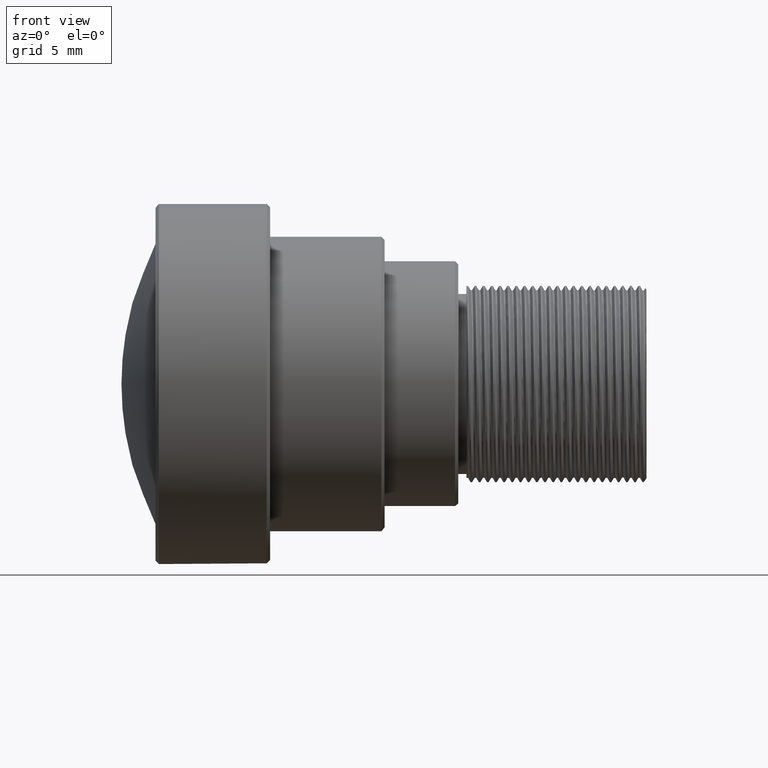
[diagram: clean part render]
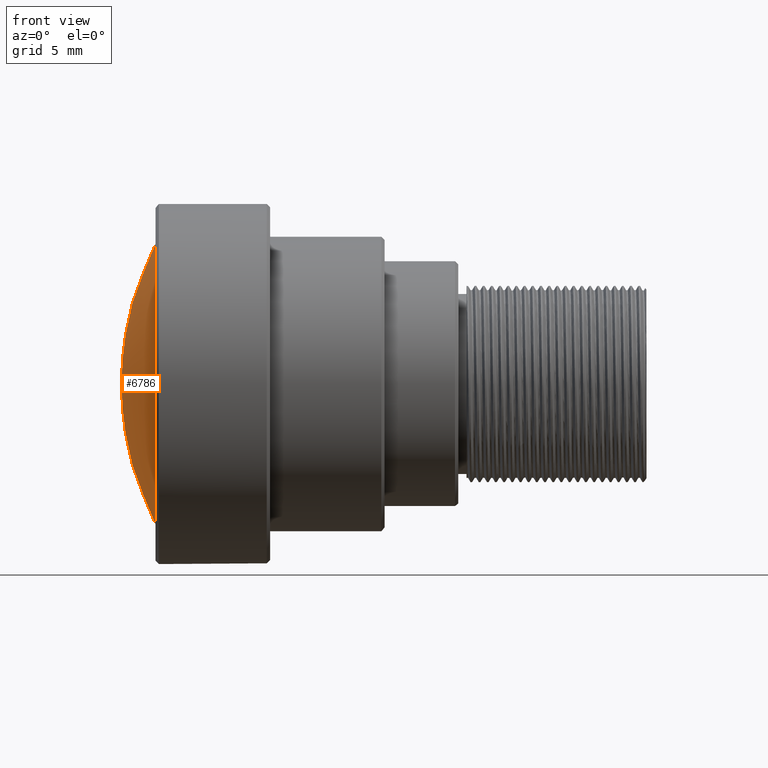
[diagram: same view with one face highlighted and labeled with its STEP entity id]
A machine part, front view. The second image highlights one B-rep face of the part: STEP entity #6786.
In plain terms, the highlighted face is a freeform B-spline surface patch.
Its self-contained STEP definition (entity closure, byte-faithful):
#37 = CARTESIAN_POINT ( 'NONE',  ( -30.00000000000000711, 6.454344826969171223, 5.664061614446351811 ) ) ;
#74 = CARTESIAN_POINT ( 'NONE',  ( -28.04420750279835062, 8.663790437593380744, -7.714678094204609593 ) ) ;
#83 = CARTESIAN_POINT ( 'NONE',  ( -30.00000000000000000, -7.807388367453521383, 3.542791727909948563 ) ) ;
#412 = CARTESIAN_POINT ( 'NONE',  ( -30.00000000000000355, -8.282432752775113372, -2.215426662425908688 ) ) ;
#536 =( BOUNDED_SURFACE ( )  B_SPLINE_SURFACE ( 3, 3, ( 
 ( #74, #9528, #1614, #4423 ),
 ( #7500, #3108, #892, #6051 ),
 ( #5278, #3831, #5323, #2922 ),
 ( #4469, #4558, #2196, #5238 ) ),
 .UNSPECIFIED., .F., .F., .F. ) 
 B_SPLINE_SURFACE_WITH_KNOTS ( ( 4, 4 ),
 ( 4, 4 ),
 ( 0.000000000000000000, 1.000000000000000000 ),
 ( 0.000000000000000000, 1.000000000000000000 ),
 .UNSPECIFIED. ) 
 GEOMETRIC_REPRESENTATION_ITEM ( )  RATIONAL_B_SPLINE_SURFACE ( (
 ( 1.000000000000000000, 0.9232544833816987984, 0.9232544833816987984, 1.000000000000000000),
 ( 0.9240541489962362798, 0.8531371359482354810, 0.8531371359482354810, 0.9240541489962362798),
 ( 0.9240541489962362798, 0.8531371359482354810, 0.8531371359482354810, 0.9240541489962362798),
 ( 1.000000000000000000, 0.9232544833816987984, 0.9232544833816987984, 1.000000000000000000) ) ) 
 REPRESENTATION_ITEM ( '' )  SURFACE ( )  );
#563 = CARTESIAN_POINT ( 'NONE',  ( -29.99999999999999645, 2.224842296941647479, 8.279876169122690754 ) ) ;
#612 = CARTESIAN_POINT ( 'NONE',  ( -30.00000000000000711, 8.023629570037414283, 3.021248562153514783 ) ) ;
#663 = CARTESIAN_POINT ( 'NONE',  ( -30.00000000000000000, -0.5537046779710883548, 8.555744410530214950 ) ) ;
#714 = CARTESIAN_POINT ( 'NONE',  ( -29.99999999999999645, 3.788507307234942889, -7.691173157924673376 ) ) ;
#764 = CARTESIAN_POINT ( 'NONE',  ( -30.00000000000000000, 8.568997683413112298, 0.5660573742194553448 ) ) ;
#892 = CARTESIAN_POINT ( 'NONE',  ( -33.65684399031425045, 3.125282375498774634, 3.272589018754834989 ) ) ;
#904 = CARTESIAN_POINT ( 'NONE',  ( -30.00000000000001066, -4.285023026439476190, 7.426002277473180868 ) ) ;
#993 = CARTESIAN_POINT ( 'NONE',  ( -30.00000000000001066, -6.454899769200725501, 5.664075928038591279 ) ) ;
#1241 = CARTESIAN_POINT ( 'NONE',  ( -30.00000000000000000, -8.119352401903007888, -2.753710982391116779 ) ) ;
#1337 = CARTESIAN_POINT ( 'NONE',  ( -30.00000000000000000, 1.115397424107616553, -8.500778780501246246 ) ) ;
#1389 = CARTESIAN_POINT ( 'NONE',  ( -30.00000000000002132, 0.5645674053310438811, 8.568618141313464776 ) ) ;
#1437 = CARTESIAN_POINT ( 'NONE',  ( -30.00000000000000355, 0.5537046779710901312, -8.555744410530216726 ) ) ;
#1485 = CARTESIAN_POINT ( 'NONE',  ( -30.00000000000000000, 7.276124026022667834, -4.534713186024624143 ) ) ;
#1614 = CARTESIAN_POINT ( 'NONE',  ( -30.63909965886078268, 8.663790437593380744, 2.785320202633365216 ) ) ;
#1736 = ORIENTED_EDGE ( 'NONE', *, *, #5593, .F. ) ;
#2055 = CARTESIAN_POINT ( 'NONE',  ( -30.00000000000000355, 8.512249204100651667, -1.132498341040244716 ) ) ;
#2104 = CARTESIAN_POINT ( 'NONE',  ( -29.99999999999999289, -5.663837835497725237, -6.454541199097940662 ) ) ;
#2154 = CARTESIAN_POINT ( 'NONE',  ( -29.99999999999999645, -2.219497051366090545, 8.295504828672520148 ) ) ;
#2196 = CARTESIAN_POINT ( 'NONE',  ( -30.63909965886077913, -8.663790437593393179, 2.785320202633359443 ) ) ;
#2205 = CARTESIAN_POINT ( 'NONE',  ( -29.99999999999999645, 7.685679418526857987, -3.799608025408320877 ) ) ;
#2252 = CARTESIAN_POINT ( 'NONE',  ( -29.99999999999999645, 3.286951789236633115, 7.928230209388057226 ) ) ;
#2783 = CARTESIAN_POINT ( 'NONE',  ( -29.99999999999999645, -1.949985985229574448, -8.348937563287995189 ) ) ;
#2830 = CARTESIAN_POINT ( 'NONE',  ( -29.99999999999999645, 4.530111659141636160, 7.279090243461657117 ) ) ;
#2879 = CARTESIAN_POINT ( 'NONE',  ( -30.00000000000000711, -2.224842296941645703, -8.279876169122699636 ) ) ;
#2922 = CARTESIAN_POINT ( 'NONE',  ( -30.60799683559420004, -3.125282375498784848, 9.064297451493342095 ) ) ;
#2931 = CARTESIAN_POINT ( 'NONE',  ( -30.00000000000000711, -8.023629570037419612, -3.021248562153524109 ) ) ;
#2980 = CARTESIAN_POINT ( 'NONE',  ( -30.00000000000000355, 5.663837835497727902, 6.454541199097942439 ) ) ;
#3028 = CARTESIAN_POINT ( 'NONE',  ( -29.99999999999998579, -8.512249204100653444, 1.132498341040248269 ) ) ;
#3108 = CARTESIAN_POINT ( 'NONE',  ( -33.65684399031425045, 3.125282375498774634, -3.272589018754831880 ) ) ;
#3139 = EDGE_LOOP ( 'NONE', ( #1736 ) ) ;
#3203 = CARTESIAN_POINT ( 'NONE',  ( -30.00000000000000355, -7.685679418526850881, 3.799608025408315548 ) ) ;
#3502 = CARTESIAN_POINT ( 'NONE',  ( -29.99999999999999645, 1.949985985229574004, 8.348937563287998742 ) ) ;
#3552 = CARTESIAN_POINT ( 'NONE',  ( -30.00000000000000000, 8.350251197931713776, 1.943947652188347641 ) ) ;
#3604 = CARTESIAN_POINT ( 'NONE',  ( -30.00000000000002132, 2.219497051366094986, -8.295504828672516595 ) ) ;
#3655 = CARTESIAN_POINT ( 'NONE',  ( -30.00000000000000000, 5.221728246932552331, -6.817111946206551032 ) ) ;
#3709 = CARTESIAN_POINT ( 'NONE',  ( -29.99999999999999289, 8.513459278655496121, 1.122656397875664069 ) ) ;
#3831 = CARTESIAN_POINT ( 'NONE',  ( -33.65684399031424334, -3.125282375498785292, -3.272589018754827883 ) ) ;
#3843 = CARTESIAN_POINT ( 'NONE',  ( -30.00000000000000355, -7.420224438414763313, 4.294992264797081738 ) ) ;
#4086 = CARTESIAN_POINT ( 'NONE',  ( -30.00000000000000711, -8.513459278655492568, -1.122656397875658962 ) ) ;
#4232 = CARTESIAN_POINT ( 'NONE',  ( -30.00000000000000000, 3.792093828975522385, 7.689368545216499484 ) ) ;
#4280 = CARTESIAN_POINT ( 'NONE',  ( -30.00000000000000000, -7.701105662693593423, -3.799487476355798421 ) ) ;
#4333 = CARTESIAN_POINT ( 'NONE',  ( -30.00000000000001066, -0.2735981351624262037, 8.569184519888249696 ) ) ;
#4384 = CARTESIAN_POINT ( 'NONE',  ( -30.00000000000000711, -1.120492842416807244, -8.514114575701148269 ) ) ;
#4423 = CARTESIAN_POINT ( 'NONE',  ( -28.04420750279834706, 8.663790437593380744, 7.714678094204615810 ) ) ;
#4432 = CARTESIAN_POINT ( 'NONE',  ( -30.00000000000000711, -3.286951789236630006, -7.928230209388063443 ) ) ;
#4469 = CARTESIAN_POINT ( 'NONE',  ( -28.04420750279834351, -8.663790437593389626, -7.714678094204606040 ) ) ;
#4504 = VERTEX_POINT ( 'NONE', #7446 ) ;
#4525 = CARTESIAN_POINT ( 'NONE',  ( -30.00000000000001066, -2.753629393102194456, 8.133894220628846483 ) ) ;
#4558 = CARTESIAN_POINT ( 'NONE',  ( -30.63909965886078268, -8.663790437593393179, -2.785320202633356779 ) ) ;
#5003 = CARTESIAN_POINT ( 'NONE',  ( -29.99999999999999645, 8.119352401903007888, 2.753710982391121220 ) ) ;
#5051 = CARTESIAN_POINT ( 'NONE',  ( -30.00000000000000000, 3.531684294190848394, -7.812405169130315130 ) ) ;
#5100 = CARTESIAN_POINT ( 'NONE',  ( -30.00000000000000000, -4.286739973049944474, -7.424973174034622758 ) ) ;
#5150 = CARTESIAN_POINT ( 'NONE',  ( -30.00000000000000000, 8.568997683413108746, -0.5660573742194630054 ) ) ;
#5199 = CARTESIAN_POINT ( 'NONE',  ( -30.00000000000000000, 4.285023026439480631, -7.426002277473187974 ) ) ;
#5238 = CARTESIAN_POINT ( 'NONE',  ( -28.04420750279833996, -8.663790437593389626, 7.714678094204608705 ) ) ;
#5278 = CARTESIAN_POINT ( 'NONE',  ( -30.60799683559420359, -3.125282375498784848, -9.064297451493334989 ) ) ;
#5323 = CARTESIAN_POINT ( 'NONE',  ( -33.65684399031424334, -3.125282375498785292, 3.272589018754838097 ) ) ;
#5334 = CARTESIAN_POINT ( 'NONE',  ( -30.00000000000000000, -8.568997683413119404, -3.686287386450715076E-15 ) ) ;
#5424 = CARTESIAN_POINT ( 'NONE',  ( -30.00000000000000000, -8.568997683413121180, 0.5660573742194605629 ) ) ;
#5593 = EDGE_CURVE ( 'NONE', #4504, #4504, #8159, .T. ) ;
#5724 = CARTESIAN_POINT ( 'NONE',  ( -30.00000000000000711, 8.292633771495058426, -2.230059222763108639 ) ) ;
#5771 = CARTESIAN_POINT ( 'NONE',  ( -30.00000000000000355, 2.761135735087107967, 8.116797525791277224 ) ) ;
#5822 = CARTESIAN_POINT ( 'NONE',  ( -29.99999999999999645, -1.395280730420078941, 8.459277424104307386 ) ) ;
#5877 = CARTESIAN_POINT ( 'NONE',  ( -30.00000000000000355, 2.753629393102186462, -8.133894220628839378 ) ) ;
#5927 = CARTESIAN_POINT ( 'NONE',  ( -30.00000000000000711, 8.282432752775116924, 2.215426662425909576 ) ) ;
#5973 = CARTESIAN_POINT ( 'NONE',  ( -30.00000000000000000, -8.130393875168648421, 2.764105086639255138 ) ) ;
#6051 = CARTESIAN_POINT ( 'NONE',  ( -30.60799683559420714, 3.125282375498774634, 9.064297451493342095 ) ) ;
#6449 = CARTESIAN_POINT ( 'NONE',  ( -29.99999999999999645, 6.454899769200737936, -5.664075928038590391 ) ) ;
#6497 = CARTESIAN_POINT ( 'NONE',  ( -30.00000000000000355, 7.437950558392455669, 4.291635228133184654 ) ) ;
#6546 = CARTESIAN_POINT ( 'NONE',  ( -29.99999999999999289, -0.5645674053310487661, -8.568618141313450565 ) ) ;
#6597 = CARTESIAN_POINT ( 'NONE',  ( -30.00000000000001066, -4.530111659141629055, -7.279090243461648235 ) ) ;
#6646 = CARTESIAN_POINT ( 'NONE',  ( -30.00000000000000711, 5.654606511013271941, -6.463196759701825833 ) ) ;
#6685 = FACE_OUTER_BOUND ( 'NONE', #3139, .T. ) ;
#6694 = CARTESIAN_POINT ( 'NONE',  ( -30.00000000000002132, -3.788507307234937560, 7.691173157924668047 ) ) ;
#6738 = CARTESIAN_POINT ( 'NONE',  ( -29.99999999999999289, -8.292633771495060202, 2.230059222763117521 ) ) ;
#6786 = ADVANCED_FACE ( 'NONE', ( #6685 ), #536, .T. ) ;
#7025 = CARTESIAN_POINT ( 'NONE',  ( -30.00000000000001066, -8.350251197931703118, -1.943947652188345865 ) ) ;
#7173 = CARTESIAN_POINT ( 'NONE',  ( -30.00000000000001776, 0.2735981351624299229, -8.569184519888237261 ) ) ;
#7224 = CARTESIAN_POINT ( 'NONE',  ( -29.99999999999996803, 6.810404636690175373, -5.230453410155787353 ) ) ;
#7274 = CARTESIAN_POINT ( 'NONE',  ( -30.00000000000001421, 4.286739973049943586, 7.424973174034625423 ) ) ;
#7323 = CARTESIAN_POINT ( 'NONE',  ( -30.00000000000001421, 1.395280730420073834, -8.459277424104312715 ) ) ;
#7374 = CARTESIAN_POINT ( 'NONE',  ( -30.00000000000000000, 7.807388367453524047, -3.542791727909936128 ) ) ;
#7421 = CARTESIAN_POINT ( 'NONE',  ( -30.00000000000001066, -3.531684294190850171, 7.812405169130324900 ) ) ;
#7446 = CARTESIAN_POINT ( 'NONE',  ( -30.00000000000000000, -8.568997683413117628, -3.469446951953614189E-15 ) ) ;
#7500 = CARTESIAN_POINT ( 'NONE',  ( -30.60799683559420714, 3.125282375498774634, -9.064297451493338542 ) ) ;
#7511 = CARTESIAN_POINT ( 'NONE',  ( -29.99999999999999645, -7.276124026022660729, 4.534713186024617038 ) ) ;
#7553 = CARTESIAN_POINT ( 'NONE',  ( -30.00000000000001421, -6.810404636690166491, 5.230453410155783800 ) ) ;
#7596 = CARTESIAN_POINT ( 'NONE',  ( -29.99999999999999289, -4.525150429935639984, 7.282078676668431783 ) ) ;
#7755 = CARTESIAN_POINT ( 'NONE',  ( -30.00000000000000000, -8.568997683413119404, -0.5660573742194618951 ) ) ;
#7951 = CARTESIAN_POINT ( 'NONE',  ( -30.00000000000000000, -6.816227042911891409, -5.223053737031711385 ) ) ;
#8000 = CARTESIAN_POINT ( 'NONE',  ( -29.99999999999999645, 1.120492842416812795, 8.514114575701150045 ) ) ;
#8049 = CARTESIAN_POINT ( 'NONE',  ( -29.99999999999999289, -6.454344826969165005, -5.664061614446353587 ) ) ;
#8098 = CARTESIAN_POINT ( 'NONE',  ( -29.99999999999999289, -2.761135735087106635, -8.116797525791286105 ) ) ;
#8145 = CARTESIAN_POINT ( 'NONE',  ( -30.00000000000000000, 6.816227042911898515, 5.223053737031706945 ) ) ;
#8159 = B_SPLINE_CURVE_WITH_KNOTS ( 'NONE', 3,
 ( #9287, #7755, #4086, #7025, #412, #1241, #2931, #4280, #8712, #7951, #8049, #2104, #8813, #6597, #5100, #9388, #4432, #8098, #2879, #2783, #4384, #6546, #7173, #1437, #1337, #7323, #3604, #5877, #5051, #714, #5199, #8665, #3655, #6646, #6449, #7224, #1485, #9537, #2205, #7374, #9486, #5724, #2055, #5150, #764, #3709, #3552, #5927, #5003, #612, #9434, #6497, #8145, #37, #2980, #8864, #2830, #7274, #4232, #2252, #5771, #563, #3502, #8000, #1389, #4333, #663, #8762, #5822, #2154, #4525, #7421, #6694, #904, #7596, #8999, #8323, #993, #7553, #7511, #3843, #3203, #83, #5973, #6738, #3028, #5424, #5334 ),
 .UNSPECIFIED., .T., .F.,
 ( 4, 2, 2, 2, 2, 2, 2, 2, 1, 2, 2, 2, 2, 2, 2, 2, 2, 2, 2, 2, 2, 2, 2, 2, 2, 2, 2, 2, 2, 2, 1, 2, 2, 2, 2, 2, 2, 2, 2, 2, 2, 2, 2, 2, 4 ),
 ( 0.000000000000000000, 0.001674069065816008494, 0.002511103598724013283, 0.003348138131632018722, 0.005022207197448031769, 0.006696276263264046118, 0.008370345329080061333, 0.009207379861988067640, 0.01004441439489607395, 0.01088144892780408199, 0.01171848346071208830, 0.01339255252652810611, 0.01422958705943611242, 0.01506662159234412393, 0.01674069065816014348, 0.01757772519106814979, 0.01841475972397616304, 0.02008882878979217912, 0.02176289785560819520, 0.02259993238851620845, 0.02343696692142421822, 0.02511103598724023431, 0.02678510505305625386, 0.02845917411887227341, 0.02929620865178028666, 0.03013324318468829643, 0.03180731225050430905, 0.03348138131632032860, 0.03515545038213634121, 0.03599248491504434405, 0.03682951944795236077, 0.03766655398086037054, 0.03850358851376838032, 0.04017765757958439987, 0.04101469211249240965, 0.04185172664540041942, 0.04352579571121643898, 0.04436283024412445569, 0.04519986477703246547, 0.04687393384284847808, 0.04854800290866450457, 0.04938503744157251435, 0.05022207197448052413, 0.05189614104029654368, 0.05357021010611257017 ),
 .UNSPECIFIED. ) ;
#8323 = CARTESIAN_POINT ( 'NONE',  ( -30.00000000000001066, -5.654606511013258618, 6.463196759701834715 ) ) ;
#8665 = CARTESIAN_POINT ( 'NONE',  ( -30.00000000000000000, 4.525150429935634655, -7.282078676668443329 ) ) ;
#8712 = CARTESIAN_POINT ( 'NONE',  ( -29.99999999999999645, -7.437950558392451228, -4.291635228133185542 ) ) ;
#8762 = CARTESIAN_POINT ( 'NONE',  ( -29.99999999999999645, -1.115397424107617663, 8.500778780501242693 ) ) ;
#8813 = CARTESIAN_POINT ( 'NONE',  ( -30.00000000000002132, -5.232508400669775739, -6.809255290330994193 ) ) ;
#8864 = CARTESIAN_POINT ( 'NONE',  ( -29.99999999999998224, 5.232508400669773074, 6.809255290331004851 ) ) ;
#8999 = CARTESIAN_POINT ( 'NONE',  ( -29.99999999999999645, -5.221728246932554107, 6.817111946206545703 ) ) ;
#9287 = CARTESIAN_POINT ( 'NONE',  ( -30.00000000000000000, -8.568997683413119404, -3.686287386450715076E-15 ) ) ;
#9388 = CARTESIAN_POINT ( 'NONE',  ( -30.00000000000000355, -3.792093828975509506, -7.689368545216513695 ) ) ;
#9434 = CARTESIAN_POINT ( 'NONE',  ( -30.00000000000001066, 7.701105662693590759, 3.799487476355793536 ) ) ;
#9486 = CARTESIAN_POINT ( 'NONE',  ( -29.99999999999999645, 8.130393875168646645, -2.764105086639246700 ) ) ;
#9528 = CARTESIAN_POINT ( 'NONE',  ( -30.63909965886078268, 8.663790437593380744, -2.785320202633357667 ) ) ;
#9537 = CARTESIAN_POINT ( 'NONE',  ( -29.99999999999999645, 7.420224438414777524, -4.294992264797088843 ) ) ;